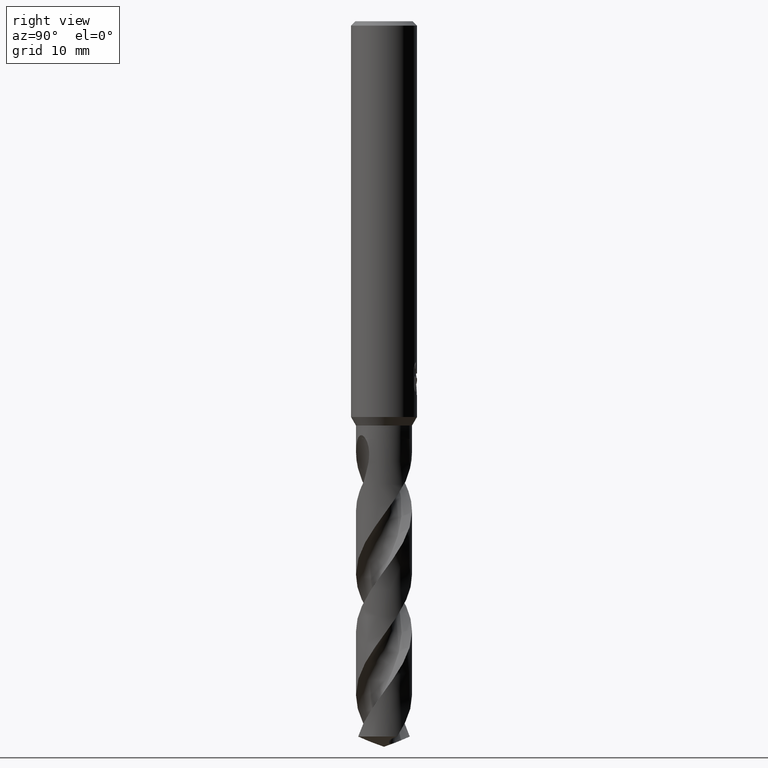
[diagram: clean part render]
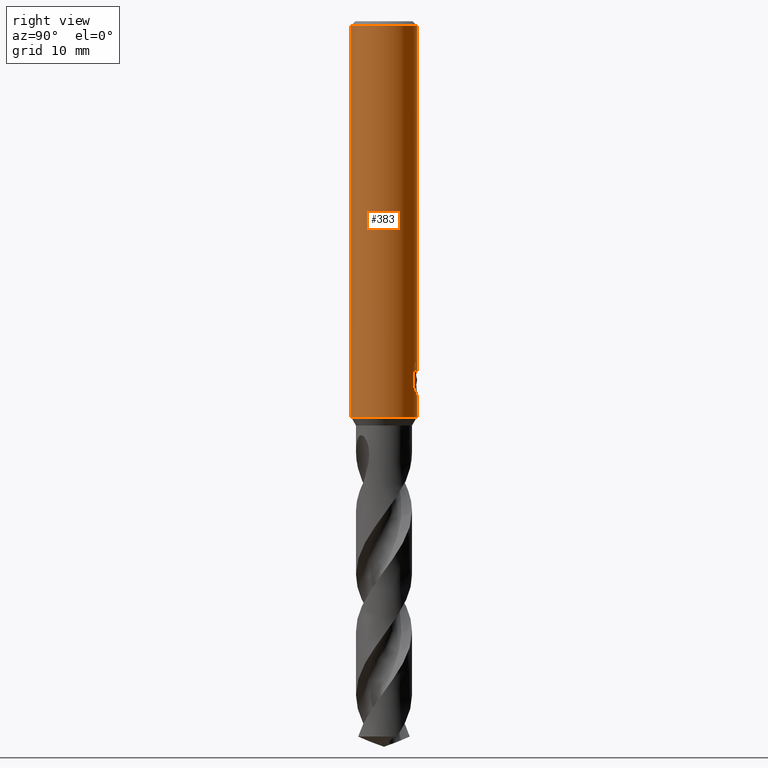
[diagram: same view with one face highlighted and labeled with its STEP entity id]
A machine part, right view. The second image highlights one B-rep face of the part: STEP entity #383.
In plain terms, the highlighted cylindrical surface (edge-blend (fillet) strip) has radius 3 mm, axis along (-0, -0, 1).
Its self-contained STEP definition (entity closure, byte-faithful):
#285=VERTEX_POINT('',#778);
#345=VERTEX_POINT('',#842);
#365=EDGE_CURVE('',#603,#693,#865,.T.);
#383=ADVANCED_FACE('',(#887),#888,.T.);
#427=VERTEX_POINT('',#936);
#431=VERTEX_POINT('',#940);
#451=EDGE_CURVE('',#543,#431,#960,.T.);
#467=VERTEX_POINT('',#977);
#515=VERTEX_POINT('',#1029);
#527=EDGE_CURVE('',#603,#345,#1041,.T.);
#543=VERTEX_POINT('',#1059);
#549=VERTEX_POINT('',#1065);
#561=EDGE_CURVE('',#549,#543,#1077,.T.);
#575=EDGE_CURVE('',#427,#549,#1092,.T.);
#579=EDGE_CURVE('',#733,#345,#1097,.T.);
#603=VERTEX_POINT('',#1123);
#607=EDGE_CURVE('',#515,#467,#1127,.T.);
#609=EDGE_CURVE('',#467,#427,#1129,.T.);
#661=VERTEX_POINT('',#1187);
#669=EDGE_CURVE('',#431,#693,#1196,.T.);
#693=VERTEX_POINT('',#1223);
#695=EDGE_CURVE('',#661,#515,#1225,.T.);
#697=EDGE_CURVE('',#661,#285,#1227,.T.);
#731=EDGE_CURVE('',#285,#733,#1265,.T.);
#733=VERTEX_POINT('',#1267);
#778=CARTESIAN_POINT('',(0.0,3.0,-36.0));
#842=CARTESIAN_POINT('',(3.67381906146713E-016,-3.0,-0.399999999999999));
#865=LINE('',#2790,#2791);
#887=FACE_OUTER_BOUND('',#2819,.T.);
#888=CYLINDRICAL_SURFACE('',#2820,3.0);
#936=CARTESIAN_POINT('',(0.873560781758956,2.86999852971612,-33.7587351791531));
#940=CARTESIAN_POINT('',(0.799431726384364,2.89152363207533,-31.000000276873));
#960=B_SPLINE_CURVE_WITH_KNOTS('',3,(#3389,#3390,#3391,#3392,#3393,#3394,#3395,#3396),.UNSPECIFIED.,.F.,.F.,(4,2,2,4),(0.629580638580865,1.25916127716173,1.57221094126725,1.88526060537277),.UNSPECIFIED.);
#977=CARTESIAN_POINT('',(0.873560781758957,2.86999852971612,-32.3198931596091));
#1029=CARTESIAN_POINT('',(0.29010312703583,2.98594041730307,-33.9998328990228));
#1041=CIRCLE('',#4302,3.0);
#1059=CARTESIAN_POINT('',(1.33721006514658,2.68549236485057,-31.5150484364821));
#1065=CARTESIAN_POINT('',(1.33721006514658,2.68549236485056,-33.2901657003257));
#1077=LINE('',#4358,#4359);
#1092=B_SPLINE_CURVE_WITH_KNOTS('',3,(#4377,#4378,#4379,#4380,#4381,#4382,#4383,#4384),.UNSPECIFIED.,.F.,.F.,(4,2,2,4),(8.17446522132897,8.48751487521068,8.80056452909238,9.43014514523744),.UNSPECIFIED.);
#1097=LINE('',#4390,#4391);
#1123=CARTESIAN_POINT('',(0.0,3.0,-0.399999999999999));
#1127=ELLIPSE('',#4791,9.14398372010932,3.0);
#1129=LINE('',#4794,#4795);
#1187=CARTESIAN_POINT('',(-2.46407913303377E-016,3.0,-34.0310253601033));
#1196=B_SPLINE_CURVE_WITH_KNOTS('',3,(#4927,#4928,#4929,#4930,#4931,#4932,#4933,#4934,#4935,#4936,#4937,#4938,#4939,#4940,#4941,#4942,#4943,#4944,#4945,#4946,#4947,#4948,#4949,#4950,#4951,#4952,#4953),.UNSPECIFIED.,.F.,.F.,(4,2,3,2,2,2,2,2,2,2,2,2,4),(-0.54422824842136,-0.27211412421068,0.0,0.272114124210678,0.544228248421357,0.817906359646673,1.09158447087199,1.36255924571499,1.63353402055798,1.90530456554772,2.17707511053746,2.4488456555272,2.72061620051693),.UNSPECIFIED.);
#1223=CARTESIAN_POINT('',(-1.20768269592175E-015,3.0,-32.0232688117743));
#1225=B_SPLINE_CURVE_WITH_KNOTS('',3,(#5091,#5092,#5093,#5094,#5095,#5096,#5097,#5098,#5099,#5100,#5101,#5102,#5103,#5104,#5105,#5106),.UNSPECIFIED.,.F.,.F.,(4,2,2,2,2,2,2,4),(5.66023402257373,6.29060333517104,6.60504483258975,6.91948633000846,7.23392782742717,7.54836932484587,7.86141901111221,8.17446869737855),.UNSPECIFIED.);
#1227=LINE('',#5109,#5110);
#1265=CIRCLE('',#5191,3.0);
#1267=CARTESIAN_POINT('',(3.67381906146713E-016,-3.0,-36.0));
#2790=CARTESIAN_POINT('',(-3.67381906146713E-016,3.0,-18.2));
#2791=VECTOR('',#5320,1.0);
#2819=EDGE_LOOP('',(#5359,#5360,#5361,#5362,#5363,#5364,#5365,#5366,#5367,#5368,#5369,#5370));
#2820=AXIS2_PLACEMENT_3D('',#5371,#5372,#5373);
#3389=CARTESIAN_POINT('',(1.47371594887933,2.61307506628086,-31.7730763684241));
#3390=CARTESIAN_POINT('',(1.38997410067862,2.66030349611674,-31.5732652606136));
#3391=CARTESIAN_POINT('',(1.2654392594963,2.72440179761724,-31.3929794688919));
#3392=CARTESIAN_POINT('',(1.05168354029617,2.81066216411606,-31.1794481382038));
#3393=CARTESIAN_POINT('',(0.971352579549231,2.83988055521709,-31.1125077441098));
#3394=CARTESIAN_POINT('',(0.795685568183073,2.89401656493242,-30.9938021282019));
#3395=CARTESIAN_POINT('',(0.700343019183212,2.91889351702519,-30.9420279807093));
#3396=CARTESIAN_POINT('',(0.600330681290245,2.93932017192779,-30.9001776926585));
#4302=AXIS2_PLACEMENT_3D('',#5501,#5502,#5503);
#4358=CARTESIAN_POINT('',(1.33721006514658,2.68549236485056,-32.4026070684039));
#4359=VECTOR('',#5541,1.0);
#4377=CARTESIAN_POINT('',(0.600330703923335,2.93932016730517,-33.9050364278969));
#4378=CARTESIAN_POINT('',(0.700343038443484,2.91889351228921,-33.8631861412044));
#4379=CARTESIAN_POINT('',(0.795685584213131,2.8940165604303,-33.8114119954011));
#4380=CARTESIAN_POINT('',(0.971352589628262,2.83988055167306,-33.692706383359));
#4381=CARTESIAN_POINT('',(1.0516835476539,2.81066216129401,-33.6257659914415));
#4382=CARTESIAN_POINT('',(1.26543925920527,2.72440179743877,-33.4122346680481));
#4383=CARTESIAN_POINT('',(1.3899740959159,2.66030349847411,-33.2319488826214));
#4384=CARTESIAN_POINT('',(1.47371594109741,2.61307507066968,-33.0321377817991));
#4390=CARTESIAN_POINT('',(3.67381906146713E-016,-3.0,-18.2));
#4391=VECTOR('',#5561,1.0);
#4791=AXIS2_PLACEMENT_3D('',#5580,#5581,#5582);
#4794=CARTESIAN_POINT('',(0.873560781758957,2.86999852971612,-33.0393141693811));
#4795=VECTOR('',#5583,1.0);
#4927=CARTESIAN_POINT('',(0.665621182276714,2.92522622060321,-30.8140957881762));
#4928=CARTESIAN_POINT('',(0.728850563417096,2.91083867849353,-30.877518087557));
#4929=CARTESIAN_POINT('',(0.783900459387161,2.89602337967411,-30.9578702196133));
#4930=CARTESIAN_POINT('',(0.857188692916628,2.87518328740958,-31.1345580124299));
#4931=CARTESIAN_POINT('',(0.875400981188567,2.86943777108584,-31.2309373045166));
#4932=CARTESIAN_POINT('',(0.875400981188567,2.86943777108584,-31.3216420125868));
#4933=CARTESIAN_POINT('',(0.875400981188567,2.86943777108584,-31.412346720657));
#4934=CARTESIAN_POINT('',(0.857188692916629,2.87518328740958,-31.5087260127437));
#4935=CARTESIAN_POINT('',(0.783900459387161,2.89602337967411,-31.6854138055602));
#4936=CARTESIAN_POINT('',(0.728850563417096,2.91083867849353,-31.7657659376165));
#4937=CARTESIAN_POINT('',(0.60202838769231,2.93969645569731,-31.8929750586276));
#4938=CARTESIAN_POINT('',(0.5214778595293,2.95568533572518,-31.9483797636259));
#4939=CARTESIAN_POINT('',(0.34429909105015,2.98152194310932,-32.0221641076746));
#4940=CARTESIAN_POINT('',(0.247628172090375,2.99115403786358,-32.0405166027747));
#4941=CARTESIAN_POINT('',(0.0663244946631877,3.00062654348629,-32.0405166027747));
#4942=CARTESIAN_POINT('',(-0.0299285908853379,3.00115720326599,-32.0224875186921));
#4943=CARTESIAN_POINT('',(-0.206881310600538,2.99416773126077,-31.949244373347));
#4944=CARTESIAN_POINT('',(-0.287593937381961,2.98687212067831,-31.8940404490632));
#4945=CARTESIAN_POINT('',(-0.415200117492864,2.97182576996222,-31.7666805419979));
#4946=CARTESIAN_POINT('',(-0.470604049431396,2.96309385107775,-31.6859121102136));
#4947=CARTESIAN_POINT('',(-0.544183869965539,2.95046729924835,-31.5086992019516));
#4948=CARTESIAN_POINT('',(-0.562348199187247,2.94682278104247,-31.41223219425));
#4949=CARTESIAN_POINT('',(-0.562348199187247,2.94682278104247,-31.2310518309235));
#4950=CARTESIAN_POINT('',(-0.54418386996554,2.95046729924835,-31.134584823222));
#4951=CARTESIAN_POINT('',(-0.4706040494314,2.96309385107775,-30.95737191496));
#4952=CARTESIAN_POINT('',(-0.415200117492863,2.97182576996222,-30.8766034831756));
#4953=CARTESIAN_POINT('',(-0.351303479704285,2.97935997575782,-30.812830162452));
#5091=CARTESIAN_POINT('',(-1.53050642192579,2.58022287650581,-33.0319811255889));
#5092=CARTESIAN_POINT('',(-1.44691631248335,2.62980577312329,-33.2314887010961));
#5093=CARTESIAN_POINT('',(-1.32276760444366,2.69707077181617,-33.4113258593841));
#5094=CARTESIAN_POINT('',(-1.10973155101076,2.78826898930335,-33.6245951706909));
#5095=CARTESIAN_POINT('',(-1.02948996220254,2.81934349084513,-33.6916117853674));
#5096=CARTESIAN_POINT('',(-0.853932698223484,2.87738531454781,-33.8105216600777));
#5097=CARTESIAN_POINT('',(-0.758609991487907,2.90431263574779,-33.8624240602539));
#5098=CARTESIAN_POINT('',(-0.558469552260235,2.94934446690523,-33.9464055954533));
#5099=CARTESIAN_POINT('',(-0.453457041446381,2.96746268462387,-33.9785511641911));
#5100=CARTESIAN_POINT('',(-0.240810292537893,2.99223469602914,-34.0209924679526));
#5101=CARTESIAN_POINT('',(-0.133171317626829,2.99887501234033,-34.0312723335086));
#5102=CARTESIAN_POINT('',(0.0759830626177195,3.00085245803086,-34.0312723335086));
#5103=CARTESIAN_POINT('',(0.183273473896684,2.99629272230549,-34.0210815541729));
#5104=CARTESIAN_POINT('',(0.39543915272815,2.97573303917486,-33.9788816901513));
#5105=CARTESIAN_POINT('',(0.500318639064909,2.95974677710468,-33.9468871509919));
#5106=CARTESIAN_POINT('',(0.600330982089903,2.93932011049205,-33.9050368602192));
#5109=CARTESIAN_POINT('',(-3.67381906146713E-016,3.0,-18.2));
#5110=VECTOR('',#5713,1.0);
#5191=AXIS2_PLACEMENT_3D('',#5766,#5767,#5768);
#5320=DIRECTION('',(0.0,0.0,-1.0));
#5359=ORIENTED_EDGE('',*,*,#365,.F.);
#5360=ORIENTED_EDGE('',*,*,#527,.T.);
#5361=ORIENTED_EDGE('',*,*,#579,.F.);
#5362=ORIENTED_EDGE('',*,*,#731,.F.);
#5363=ORIENTED_EDGE('',*,*,#697,.F.);
#5364=ORIENTED_EDGE('',*,*,#695,.T.);
#5365=ORIENTED_EDGE('',*,*,#607,.T.);
#5366=ORIENTED_EDGE('',*,*,#609,.T.);
#5367=ORIENTED_EDGE('',*,*,#575,.T.);
#5368=ORIENTED_EDGE('',*,*,#561,.T.);
#5369=ORIENTED_EDGE('',*,*,#451,.T.);
#5370=ORIENTED_EDGE('',*,*,#669,.T.);
#5371=CARTESIAN_POINT('',(0.0,0.0,-18.2));
#5372=DIRECTION('',(-0.0,-0.0,1.0));
#5373=DIRECTION('',(0.0,1.0,0.0));
#5501=CARTESIAN_POINT('',(0.0,0.0,-0.399999999999999));
#5502=DIRECTION('',(0.0,0.0,-1.0));
#5503=DIRECTION('',(0.0,1.0,0.0));
#5541=DIRECTION('',(-0.0,-0.0,1.0));
#5561=DIRECTION('',(-0.0,-0.0,1.0));
#5580=CARTESIAN_POINT('',(0.0,0.0,-34.8351219173269));
#5581=DIRECTION('',(0.944648353914092,0.0,-0.328084573619969));
#5582=DIRECTION('',(0.328084573619969,-0.0,0.944648353914092));
#5583=DIRECTION('',(0.0,0.0,-1.0));
#5713=DIRECTION('',(0.0,0.0,-1.0));
#5766=CARTESIAN_POINT('',(0.0,0.0,-36.0));
#5767=DIRECTION('',(0.0,0.0,-1.0));
#5768=DIRECTION('',(0.0,1.0,0.0));